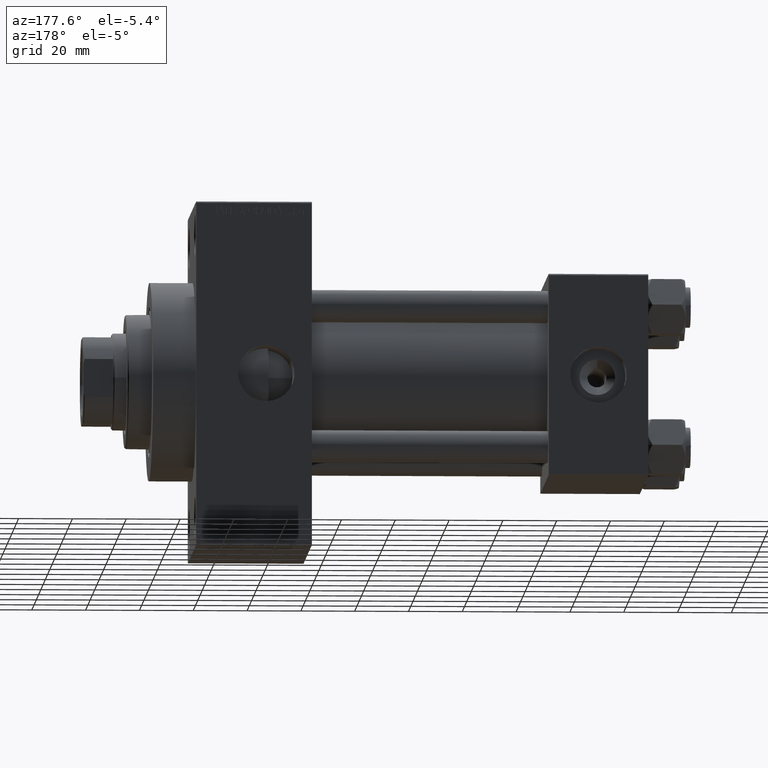
[diagram: clean part render]
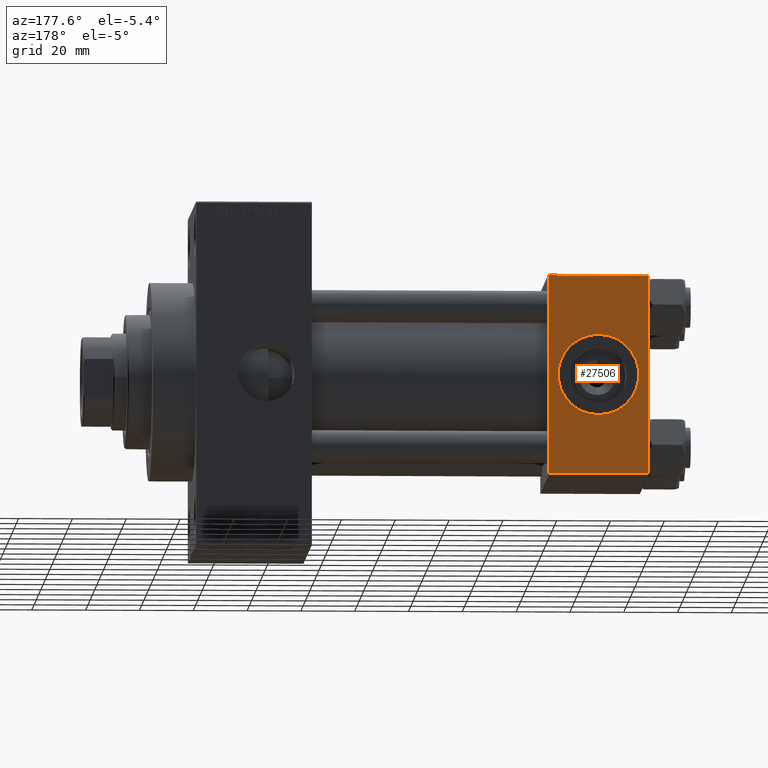
[diagram: same view with one face highlighted and labeled with its STEP entity id]
A machine part, auxiliary view. The second image highlights one B-rep face of the part: STEP entity #27506.
In plain terms, the highlighted planar face has unit normal (0, 1, 0).
Its self-contained STEP definition (entity closure, byte-faithful):
#1336 = DIRECTION ( 'NONE',  ( 0.000000000000000000, -0.000000000000000000, 1.000000000000000000 ) ) ;
#2172 = DIRECTION ( 'NONE',  ( 0.000000000000000000, 0.000000000000000000, 1.000000000000000000 ) ) ;
#2631 = AXIS2_PLACEMENT_3D ( 'NONE', #10803, #8283, #2172 ) ;
#4545 = EDGE_LOOP ( 'NONE', ( #36536, #22126, #18760, #21781 ) ) ;
#7067 = ORIENTED_EDGE ( 'NONE', *, *, #10541, .F. ) ;
#7276 = VERTEX_POINT ( 'NONE', #9225 ) ;
#7736 = LINE ( 'NONE', #27032, #15386 ) ;
#8283 = DIRECTION ( 'NONE',  ( 0.000000000000000000, 1.000000000000000000, 0.000000000000000000 ) ) ;
#9225 = CARTESIAN_POINT ( 'NONE',  ( 37.00000000000000000, 37.49999999999999289, 37.00000000000000000 ) ) ;
#9317 = DIRECTION ( 'NONE',  ( 0.000000000000000000, 0.000000000000000000, -1.000000000000000000 ) ) ;
#9526 = VECTOR ( 'NONE', #43194, 1000.000000000000000 ) ;
#10541 = EDGE_CURVE ( 'NONE', #22338, #38032, #16530, .T. ) ;
#10803 = CARTESIAN_POINT ( 'NONE',  ( 18.50000000000000000, 37.49999999999999289, 0.000000000000000000 ) ) ;
#12321 = ORIENTED_EDGE ( 'NONE', *, *, #39121, .F. ) ;
#13443 = EDGE_CURVE ( 'NONE', #7276, #23648, #34625, .T. ) ;
#15122 = PLANE ( 'NONE',  #25005 ) ;
#15268 = EDGE_CURVE ( 'NONE', #23648, #24791, #32402, .T. ) ;
#15386 = VECTOR ( 'NONE', #20226, 1000.000000000000000 ) ;
#15434 = VECTOR ( 'NONE', #9317, 1000.000000000000000 ) ;
#16530 = CIRCLE ( 'NONE', #28570, 15.00000000000000178 ) ;
#16814 = LINE ( 'NONE', #39172, #15434 ) ;
#18760 = ORIENTED_EDGE ( 'NONE', *, *, #38836, .F. ) ;
#19823 = CARTESIAN_POINT ( 'NONE',  ( 18.50000000000000000, 37.49999999999999289, 0.000000000000000000 ) ) ;
#20226 = DIRECTION ( 'NONE',  ( 1.000000000000000000, 0.000000000000000000, 0.000000000000000000 ) ) ;
#20325 = DIRECTION ( 'NONE',  ( 0.000000000000000000, 0.000000000000000000, 1.000000000000000000 ) ) ;
#20557 = EDGE_LOOP ( 'NONE', ( #12321, #7067 ) ) ;
#21781 = ORIENTED_EDGE ( 'NONE', *, *, #26661, .T. ) ;
#22126 = ORIENTED_EDGE ( 'NONE', *, *, #15268, .T. ) ;
#22224 = CARTESIAN_POINT ( 'NONE',  ( 0.000000000000000000, 37.49999999999999289, -36.99999999999998579 ) ) ;
#22338 = VERTEX_POINT ( 'NONE', #32240 ) ;
#23648 = VERTEX_POINT ( 'NONE', #35855 ) ;
#23879 = VECTOR ( 'NONE', #30127, 1000.000000000000000 ) ;
#24791 = VERTEX_POINT ( 'NONE', #22224 ) ;
#25005 = AXIS2_PLACEMENT_3D ( 'NONE', #30432, #46709, #1336 ) ;
#26661 = EDGE_CURVE ( 'NONE', #39362, #7276, #7736, .T. ) ;
#27032 = CARTESIAN_POINT ( 'NONE',  ( 37.00000000000000000, 37.49999999999999289, 37.00000000000000000 ) ) ;
#27206 = CARTESIAN_POINT ( 'NONE',  ( 0.000000000000000000, 37.49999999999999289, 37.00000000000000000 ) ) ;
#27506 = ADVANCED_FACE ( 'NONE', ( #34190, #49482 ), #15122, .T. ) ;
#28570 = AXIS2_PLACEMENT_3D ( 'NONE', #19823, #35381, #20325 ) ;
#30127 = DIRECTION ( 'NONE',  ( 0.000000000000000000, 0.000000000000000000, -1.000000000000000000 ) ) ;
#30293 = CARTESIAN_POINT ( 'NONE',  ( 18.50000000000000000, 37.49999999999999289, 15.00000000000000178 ) ) ;
#30432 = CARTESIAN_POINT ( 'NONE',  ( 37.00000000000000000, 37.49999999999999289, 37.50000000000000000 ) ) ;
#32240 = CARTESIAN_POINT ( 'NONE',  ( 18.50000000000000355, 37.49999999999999289, -15.00000000000000178 ) ) ;
#32402 = LINE ( 'NONE', #40403, #9526 ) ;
#34190 = FACE_BOUND ( 'NONE', #20557, .T. ) ;
#34625 = LINE ( 'NONE', #38629, #23879 ) ;
#35381 = DIRECTION ( 'NONE',  ( 0.000000000000000000, 1.000000000000000000, 0.000000000000000000 ) ) ;
#35855 = CARTESIAN_POINT ( 'NONE',  ( 37.00000000000000000, 37.49999999999999289, -36.99999999999998579 ) ) ;
#36536 = ORIENTED_EDGE ( 'NONE', *, *, #13443, .T. ) ;
#38032 = VERTEX_POINT ( 'NONE', #30293 ) ;
#38629 = CARTESIAN_POINT ( 'NONE',  ( 37.00000000000000000, 37.49999999999999289, 37.50000000000000000 ) ) ;
#38836 = EDGE_CURVE ( 'NONE', #39362, #24791, #16814, .T. ) ;
#39121 = EDGE_CURVE ( 'NONE', #38032, #22338, #45879, .T. ) ;
#39172 = CARTESIAN_POINT ( 'NONE',  ( 0.000000000000000000, 37.49999999999999289, 37.50000000000000000 ) ) ;
#39362 = VERTEX_POINT ( 'NONE', #27206 ) ;
#40403 = CARTESIAN_POINT ( 'NONE',  ( 37.00000000000000000, 37.49999999999999289, -36.99999999999998579 ) ) ;
#43194 = DIRECTION ( 'NONE',  ( -1.000000000000000000, 0.000000000000000000, 0.000000000000000000 ) ) ;
#45879 = CIRCLE ( 'NONE', #2631, 15.00000000000000178 ) ;
#46709 = DIRECTION ( 'NONE',  ( -0.000000000000000000, 1.000000000000000000, 0.000000000000000000 ) ) ;
#49482 = FACE_OUTER_BOUND ( 'NONE', #4545, .T. ) ;